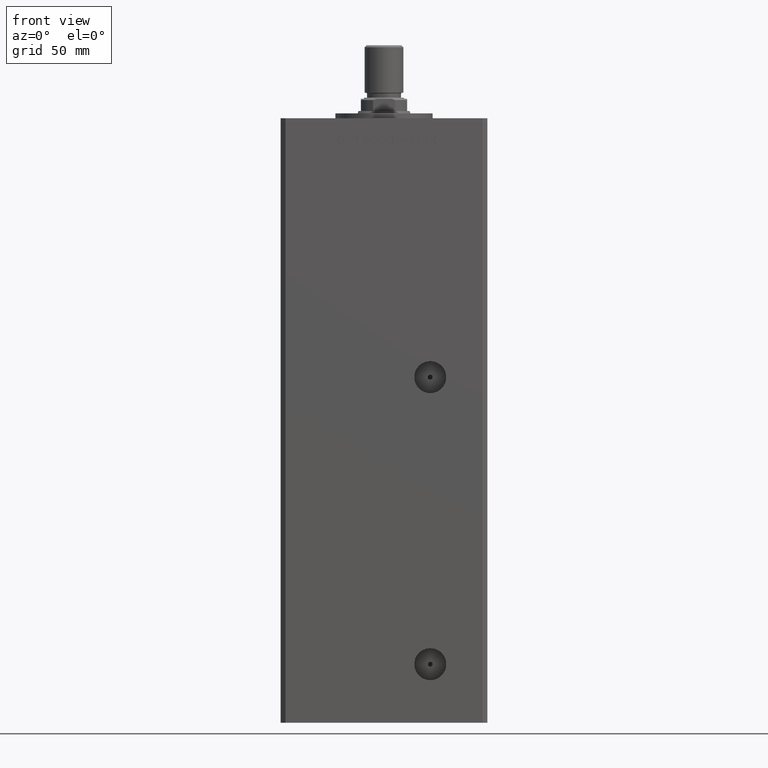
[diagram: clean part render]
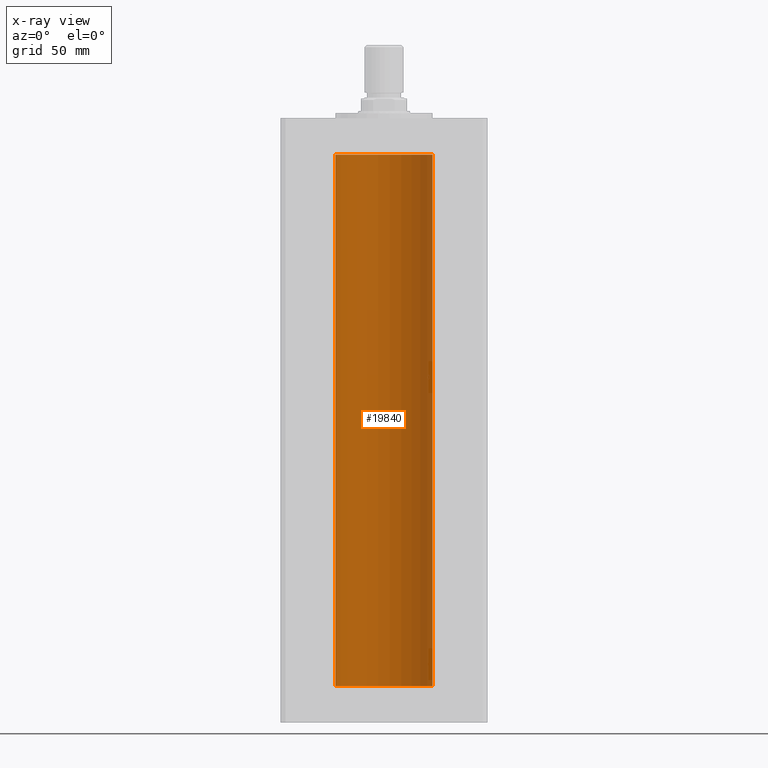
[diagram: x-ray — body ghosted, one internal face saturated and labeled with its STEP entity id]
A machine part, front view, then the same camera in x-ray: the body is ghosted and one INTERNAL B-rep face — a face not visible from any outside direction — is saturated and labeled: STEP entity #19840.
In plain terms, the highlighted cylindrical surface (partial cylindrical patch) has radius 20 mm, axis along (-0, -0, -1).
Its self-contained STEP definition (entity closure, byte-faithful):
#1633 = EDGE_LOOP ( 'NONE', ( #15327, #39199, #36812, #17022 ) ) ;
#3401 = DIRECTION ( 'NONE',  ( 1.000000000000000000, 0.000000000000000000, 0.000000000000000000 ) ) ;
#5590 = CARTESIAN_POINT ( 'NONE',  ( 0.000000000000000000, 0.000000000000000000, 218.5000000000000000 ) ) ;
#6419 = EDGE_CURVE ( 'NONE', #15744, #11760, #23649, .T. ) ;
#6499 = EDGE_CURVE ( 'NONE', #15744, #10930, #29432, .T. ) ;
#7651 = CARTESIAN_POINT ( 'NONE',  ( -20.00000000000000000, 0.000000000000000000, 218.5000000000000000 ) ) ;
#9450 = CARTESIAN_POINT ( 'NONE',  ( -20.00000000000000000, 0.000000000000000000, 0.000000000000000000 ) ) ;
#9822 = FACE_OUTER_BOUND ( 'NONE', #1633, .T. ) ;
#10930 = VERTEX_POINT ( 'NONE', #23981 ) ;
#11760 = VERTEX_POINT ( 'NONE', #50060 ) ;
#15327 = ORIENTED_EDGE ( 'NONE', *, *, #6499, .F. ) ;
#15744 = VERTEX_POINT ( 'NONE', #21133 ) ;
#17022 = ORIENTED_EDGE ( 'NONE', *, *, #35058, .F. ) ;
#19840 = ADVANCED_FACE ( 'NONE', ( #9822 ), #50883, .F. ) ;
#21133 = CARTESIAN_POINT ( 'NONE',  ( 20.00000000000000000, 2.449293598294706513E-15, 218.5000000000000000 ) ) ;
#21748 = CARTESIAN_POINT ( 'NONE',  ( 20.00000000000000000, 2.449293598294706513E-15, 218.5000000000000000 ) ) ;
#23649 = CIRCLE ( 'NONE', #32984, 20.00000000000000000 ) ;
#23981 = CARTESIAN_POINT ( 'NONE',  ( 20.00000000000000000, 2.449293598294706513E-15, 0.000000000000000000 ) ) ;
#24935 = DIRECTION ( 'NONE',  ( -0.000000000000000000, 0.000000000000000000, 1.000000000000000000 ) ) ;
#26282 = DIRECTION ( 'NONE',  ( -0.000000000000000000, 0.000000000000000000, 1.000000000000000000 ) ) ;
#28101 = CARTESIAN_POINT ( 'NONE',  ( 0.000000000000000000, 0.000000000000000000, 218.5000000000000000 ) ) ;
#28297 = DIRECTION ( 'NONE',  ( -0.000000000000000000, -0.000000000000000000, -1.000000000000000000 ) ) ;
#29432 = LINE ( 'NONE', #21748, #39738 ) ;
#32663 = AXIS2_PLACEMENT_3D ( 'NONE', #50412, #26282, #3401 ) ;
#32984 = AXIS2_PLACEMENT_3D ( 'NONE', #28101, #24935, #40301 ) ;
#35058 = EDGE_CURVE ( 'NONE', #10930, #47516, #36047, .T. ) ;
#36047 = CIRCLE ( 'NONE', #32663, 20.00000000000000000 ) ;
#36812 = ORIENTED_EDGE ( 'NONE', *, *, #46245, .T. ) ;
#39199 = ORIENTED_EDGE ( 'NONE', *, *, #6419, .T. ) ;
#39738 = VECTOR ( 'NONE', #50122, 1000.000000000000000 ) ;
#40301 = DIRECTION ( 'NONE',  ( 1.000000000000000000, 0.000000000000000000, 0.000000000000000000 ) ) ;
#42559 = AXIS2_PLACEMENT_3D ( 'NONE', #5590, #50621, #51136 ) ;
#46245 = EDGE_CURVE ( 'NONE', #11760, #47516, #48464, .T. ) ;
#47516 = VERTEX_POINT ( 'NONE', #9450 ) ;
#48464 = LINE ( 'NONE', #7651, #51223 ) ;
#50060 = CARTESIAN_POINT ( 'NONE',  ( -20.00000000000000000, 0.000000000000000000, 218.5000000000000000 ) ) ;
#50122 = DIRECTION ( 'NONE',  ( -0.000000000000000000, -0.000000000000000000, -1.000000000000000000 ) ) ;
#50412 = CARTESIAN_POINT ( 'NONE',  ( 0.000000000000000000, 0.000000000000000000, 0.000000000000000000 ) ) ;
#50621 = DIRECTION ( 'NONE',  ( -0.000000000000000000, -0.000000000000000000, -1.000000000000000000 ) ) ;
#50883 = CYLINDRICAL_SURFACE ( 'NONE', #42559, 20.00000000000000000 ) ;
#51136 = DIRECTION ( 'NONE',  ( -1.000000000000000000, 0.000000000000000000, 0.000000000000000000 ) ) ;
#51223 = VECTOR ( 'NONE', #28297, 1000.000000000000000 ) ;